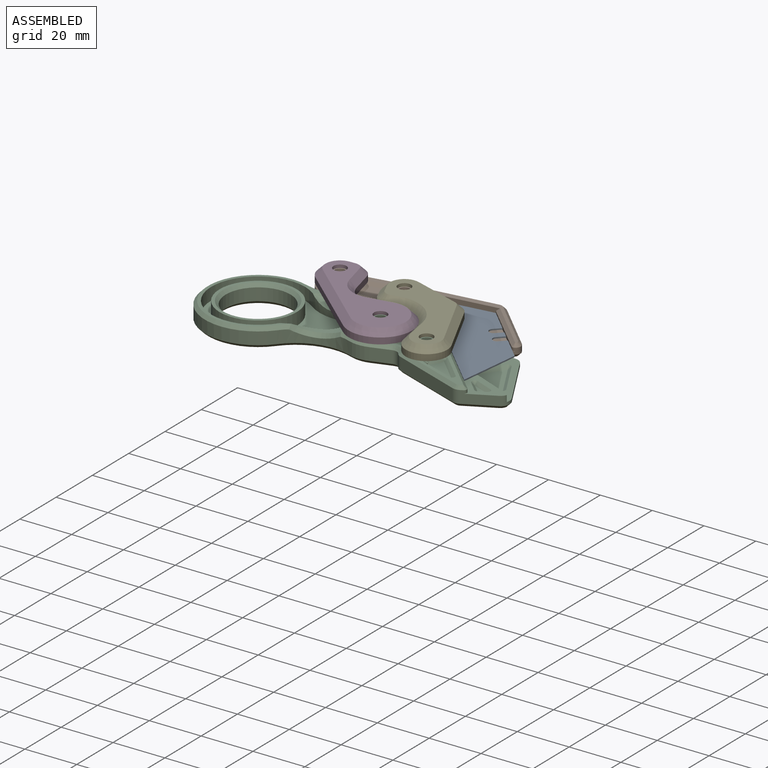
[diagram: assembled view]
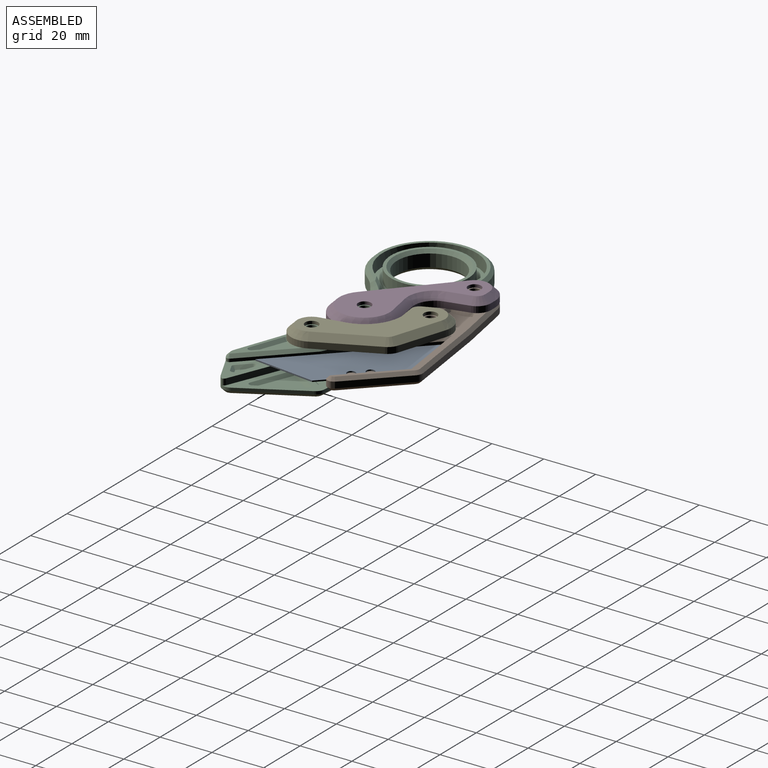
[diagram: assembled view, second angle]
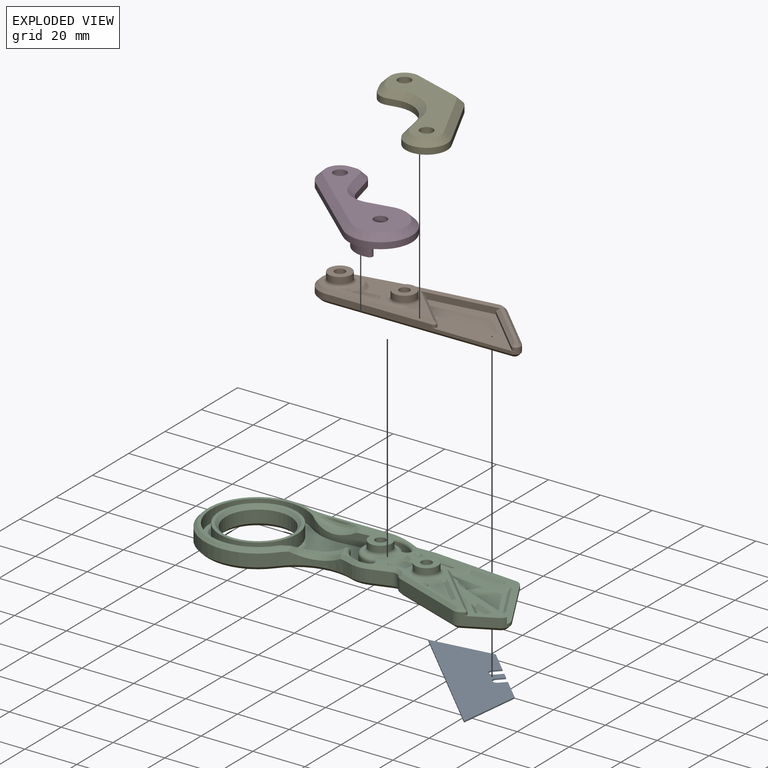
[diagram: exploded view]
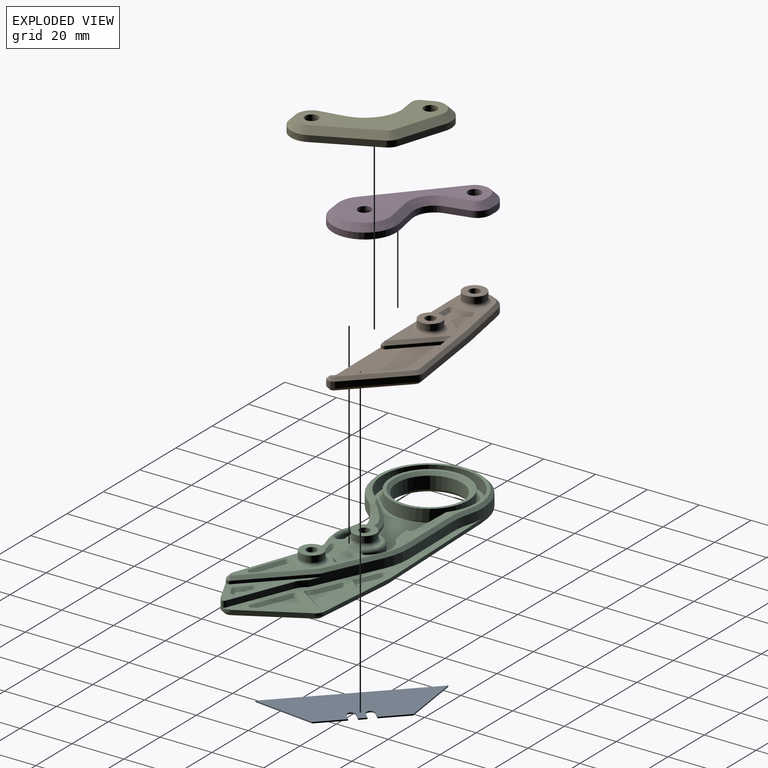
[diagram: exploded view, second angle]
ASSEMBLY  parts=5 mates=5
PART A: 14 faces, bbox 47.1x46.7x0.5 mm
  f0: plane 8.28x8.12mm, normal (0.7,0.71,0), area 5.8mm2, adj f1,f11,f12,f13
  f1: plane 23.8x3.27mm, normal (-0.14,0.99,0), area 12mm2, adj f0,f2,f12,f13
  f2: plane 44.25x43.43mm, normal (-0.7,-0.71,0), area 31mm2, adj f1,f3,f12,f13
  f3: plane 23.86x2.82mm, normal (0.99,-0.12,0), area 12mm2, adj f2,f4,f12,f13
  f4: plane 8.28x8.12mm, normal (0.7,0.71,0), area 5.8mm2, adj f3,f5,f12,f13
  f5: plane 2.28x2.24mm, normal (-0.71,0.7,0), area 1.6mm2, adj f4,f6,f12,f13
  f6: cylinder r=1.6mm len=2.74mm, axis (0,0,-1), area 2.5mm2, adj f5,f7,f12,f13
  f7: plane 2.28x2.24mm, normal (0.71,-0.7,0), area 1.6mm2, adj f6,f8,f12,f13
  f8: plane 2.14x2.1mm, normal (0.7,0.71,0), area 1.5mm2, adj f7,f9,f12,f13
  f9: plane 2.28x2.24mm, normal (-0.71,0.7,0), area 1.6mm2, adj f8,f10,f12,f13
  f10: cylinder r=1.6mm len=2.74mm, axis (0,0,-1), area 2.5mm2, adj f9,f11,f12,f13
  f11: plane 2.28x2.24mm, normal (0.71,-0.7,0), area 1.6mm2, adj f0,f10,f12,f13
  f12: plane 47.07x46.69mm, normal (0,0,1), area 870.2mm2, adj f0,f1,f2,f3,f4,f5,f6,f7
  f13: plane 47.07x46.69mm, normal (0,0,-1), area 870.2mm2, adj f0,f1,f2,f3,f4,f5,f6,f7
PART B: 63 faces, bbox 81.2x24x8.4 mm
  f0: plane 45.8x19.97mm, normal (0,0,1), area 512.8mm2, adj f3,f4,f11,f12,f13,f14,f16,f17
  f1: plane 20.23x3.71mm, normal (-0.18,0.98,0), area 49.4mm2, adj f2,f20,f22,f43
  f2: cylinder r=8mm len=15.87mm, axis (0,0,1), area 57.1mm2, adj f1,f3,f23,f44
  f3: plane 70.76x2.4mm, normal (0.01,-1,0), area 133.5mm2, adj f0,f2,f4,f16,f25,f45
  f4: cylinder r=2.35mm len=2.6mm, axis (0,0,1), area 7.3mm2, adj f0,f3,f17,f19,f27,f36
  f5: plane 2.4x0.96mm, normal (0.87,0.49,0), area 2.6mm2, adj f6,f19,f31,f38
  f6: plane 18.52x18.17mm, normal (0.7,0.71,0), area 62.3mm2, adj f5,f21,f30,f39
  f7: cylinder r=2mm len=8.4mm, axis (0,0,1), area 105.6mm2, adj f10,f51
  f8: plane 31.99x4.39mm, normal (-0.14,0.99,0), area 77.5mm2, adj f20,f21,f26,f41
  f9: cylinder r=2mm len=8.4mm, axis (0,0,1), area 105.6mm2, adj f10,f49
  f10: plane 78.77x21.63mm, normal (0,0,-1), area 1197.8mm2, adj f7,f9,f22,f23,f24,f25,f26,f27
  f11: plane 14.78x14.51mm, normal (0.7,0.71,0), area 24.9mm2, adj f0,f12,f16,f47
  f12: plane 27.81x3.82mm, normal (0.14,-0.99,0), area 61.9mm2, adj f0,f11,f13,f15,f32,f47
  f13: plane 19.33x18.97mm, normal (-0.7,-0.71,0), area 32.5mm2, adj f0,f12,f18,f32
  f14: plane 1.2x0.01mm, normal (-0.08,-1,0), area 0mm2, adj f0,f17,f18,f34
  f15: plane 78.77x21.63mm, normal (0,0,1), area 381.5mm2, adj f12,f32,f34,f36,f38,f39,f40,f41
  f16: cylinder r=1.2mm len=2.06mm, axis (0,0,1), area 3.4mm2, adj f0,f3,f11,f46
  f17: cylinder r=1.2mm len=1.2mm, axis (0,0,1), area 1.2mm2, adj f0,f4,f14,f35
  f18: cylinder r=1.2mm len=1.2mm, axis (0,0,1), area 1mm2, adj f0,f13,f14,f33
  f19: cylinder r=1.2mm len=2.4mm, axis (0,0,1), area 1.2mm2, adj f4,f5,f29,f37
  f20: cylinder r=3.6mm len=2.4mm, axis (0,0,1), area 0.4mm2, adj f1,f8,f24,f42
  f21: cylinder r=3.6mm len=3.01mm, axis (0,0,1), area 7.9mm2, adj f6,f8,f28,f40
  f22: plane 20.45x4.89mm, normal (-0.13,0.7,-0.71), area 34.9mm2, adj f1,f10,f23,f24
  f23: cone r=8mm half-angle=45deg, axis (0,0,1), area 37.3mm2, adj f2,f10,f22,f25
  f24: cone r=2.4mm half-angle=45deg, axis (0,0,1), area 0.2mm2, adj f10,f20,f22,f26
  f25: plane 70.77x2.01mm, normal (0.01,-0.71,-0.71), area 120.1mm2, adj f3,f10,f23,f27
  f26: plane 32.15x5.58mm, normal (-0.1,0.7,-0.71), area 54.8mm2, adj f8,f10,f24,f28
  f27: cone r=2.35mm half-angle=45deg, axis (0,0,1), area 4.9mm2, adj f4,f10,f25,f29
  f28: cone r=2.4mm half-angle=45deg, axis (0,0,1), area 4.6mm2, adj f10,f21,f26,f30
  f29: cone r=1.2mm half-angle=45deg, axis (0,0,1), area 0.4mm2, adj f19,f27,f31
  f30: plane 19.36x18.91mm, normal (0.5,0.5,-0.71), area 43.9mm2, adj f6,f10,f28,f31
  f31: plane 1.55x1.5mm, normal (0.62,0.35,-0.71), area 1.7mm2, adj f5,f10,f29,f30
  f32: plane 20.17x19.17mm, normal (-0.5,-0.5,0.71), area 45.2mm2, adj f12,f13,f15,f33
  f33: cone r=1.2mm half-angle=45deg, axis (0,0,-1), area 0.7mm2, adj f18,f32,f34
  f34: plane 1.2x1.2mm, normal (-0.06,-0.7,0.71), area 0mm2, adj f14,f15,f33,f35
  f35: cone r=1.2mm half-angle=45deg, axis (0,0,-1), area 0.9mm2, adj f17,f34,f36
  f36: cone r=1.15mm half-angle=45deg, axis (0,0,-1), area 2.7mm2, adj f4,f15,f35,f37
  f37: cone r=1.2mm half-angle=45deg, axis (0,0,-1), area 0.4mm2, adj f19,f36,f38
  f38: plane 1.55x1.5mm, normal (0.62,0.35,0.71), area 1.7mm2, adj f5,f15,f37,f39
  f39: plane 19.36x18.91mm, normal (0.5,0.5,0.71), area 43.9mm2, adj f6,f15,f38,f40
  f40: cone r=2.4mm half-angle=45deg, axis (0,0,-1), area 4.6mm2, adj f15,f21,f39,f41
  f41: plane 32.15x5.58mm, normal (-0.1,0.7,0.71), area 54.8mm2, adj f8,f15,f40,f42
  f42: cone r=2.4mm half-angle=45deg, axis (0,0,-1), area 0.2mm2, adj f15,f20,f41,f43
  f43: plane 20.45x4.89mm, normal (-0.13,0.7,0.71), area 34.9mm2, adj f1,f15,f42,f44
  f44: cone r=6.8mm half-angle=45deg, axis (0,0,-1), area 37.3mm2, adj f2,f15,f43,f45
  f45: plane 40.51x1.66mm, normal (0.01,-0.71,0.71), area 68.7mm2, adj f3,f15,f44,f46
  f46: cone r=1.2mm half-angle=45deg, axis (0,0,-1), area 2.4mm2, adj f16,f45,f47
  f47: plane 16.29x15.36mm, normal (0.5,0.5,0.71), area 35.9mm2, adj f11,f12,f15,f46
  f48: cylinder r=4.4mm len=8.8mm, axis (0,0,-1), area 66.4mm2, adj f49,f53
  f49: plane 8.8x8.8mm, normal (0,0,1), area 48.3mm2, adj f9,f48
  f50: cylinder r=4.4mm len=8.8mm, axis (0,0,-1), area 66.4mm2, adj f51,f52
  f51: plane 8.8x8.8mm, normal (0,0,1), area 48.3mm2, adj f7,f50
  f52: torus R=5.6mm, axis (0,0,1), area 57.3mm2, adj f15,f50
  f53: torus R=5.6mm, axis (0,0,1), area 57.3mm2, adj f15,f48
  f54: plane 10.05x9.65mm, normal (0,0,1), area 61.6mm2, adj f56,f57,f60,f61
  f55: cone r=1.2mm half-angle=45deg, axis (0,0,1), area 2mm2, adj f15,f56,f57
  f56: cone r=8mm half-angle=45deg, axis (0,0,-1), area 12.9mm2, adj f15,f54,f55,f58
  f57: plane 7.45x1.29mm, normal (-0.01,0.71,0.71), area 12.6mm2, adj f15,f54,f55,f59
  f58: cone r=1.2mm half-angle=45deg, axis (0,0,1), area 2mm2, adj f15,f56,f60
  f59: cone r=1.2mm half-angle=45deg, axis (0,0,1), area 2mm2, adj f15,f57,f61
  f60: plane 10.26x3.02mm, normal (0.13,-0.7,0.71), area 17.3mm2, adj f15,f54,f58,f62
  f61: cone r=8mm half-angle=45deg, axis (0,0,-1), area 16.3mm2, adj f15,f54,f59,f62
  f62: cone r=1.2mm half-angle=45deg, axis (0,0,1), area 2.5mm2, adj f15,f60,f61
PART C: 149 faces, bbox 124.3x44.3x12.4 mm
  f0: plane 6.25x5.68mm, normal (0,0,1), area 5mm2, adj f1,f146,f147,f148
  f1: cylinder r=16.38mm len=17.7mm, axis (-0.31,0.95,0), area 44.8mm2, adj f0,f2,f143,f144,f145,f146,f148
  f2: bspline ~11.16x9.84mm, area 26.8mm2, adj f1,f3,f142,f143,f146
  f3: cylinder r=18.1mm len=36.2mm, axis (0,0,1), area 420.4mm2, adj f2,f4,f141,f142,f143
  f4: plane 69.51x36.2mm, normal (0,0,1), area 655.9mm2, adj f3,f5,f132,f133,f134,f135,f136,f139
  f5: cylinder r=1.4mm len=3.6mm, axis (0,0,1), area 15.8mm2, adj f4,f6,f132,f139
  f6: torus R=2.6mm, axis (0,0,1), area 10.9mm2, adj f5,f7,f130,f131
  f7: plane 51.86x30.57mm, normal (0,0,1), area 209mm2, adj f6,f8,f99,f100,f101,f102,f103,f104
  f8: plane 21.63x10.78mm, normal (0.3,0.64,0.71), area 39.3mm2, adj f7,f9,f98,f99,f143
  f9: plane 25.16x11.64mm, normal (0.42,0.91,0), area 94.5mm2, adj f8,f10,f87,f88,f96,f97
  f10: plane 102.87x31.02mm, normal (0,0,1), area 488.6mm2, adj f9,f11,f47,f48,f49,f50,f51,f52
  f11: plane 53.85x1.76mm, normal (-0.03,1,0), area 64.6mm2, adj f10,f12,f47,f58
  f12: plane 53.85x2.96mm, normal (-0.02,0.71,-0.71), area 91.4mm2, adj f11,f13,f45,f46
  f13: plane 120.3x40.35mm, normal (0,0,-1), area 2720.6mm2, adj f12,f14,f17,f20,f31,f32,f33,f34
  f14: cylinder r=2mm len=10.8mm, axis (0,0,1), area 135.7mm2, adj f13,f15
  f15: plane 8.8x8.8mm, normal (0,0,1), area 48.3mm2, adj f14,f16
  f16: cylinder r=4.4mm len=8.8mm, axis (0,0,-1), area 66.4mm2, adj f15,f108
  f17: cylinder r=2mm len=10.8mm, axis (0,0,1), area 135.7mm2, adj f13,f18
  f18: plane 8.8x8.8mm, normal (0,0,1), area 48.3mm2, adj f17,f19
  f19: cylinder r=4.4mm len=8.8mm, axis (0,0,-1), area 66.4mm2, adj f18,f109
  f20: cone r=21.7mm half-angle=45deg, axis (0,0,-1), area 44.9mm2, adj f13,f21,f31,f46
  f21: cylinder r=20.5mm len=23.16mm, axis (0,0,1), area 93mm2, adj f20,f22,f58,f144,f145,f148
  f22: cylinder r=12.2mm len=7.95mm, axis (0,0,1), area 38.9mm2, adj f21,f23,f31,f106
  f23: plane 7.3x4.8mm, normal (0.31,-0.95,0), area 36.8mm2, adj f22,f24,f32,f105
  f24: cylinder r=2.67mm len=4.8mm, axis (0,0,1), area 16.9mm2, adj f23,f25,f33,f104
  f25: cylinder r=3.6mm len=4.8mm, axis (0,0,1), area 11.4mm2, adj f24,f26,f34,f103
  f26: plane 26.91x9.75mm, normal (-0.34,-0.94,0), area 137.4mm2, adj f25,f27,f35,f102
  f27: cylinder r=3.6mm len=4.8mm, axis (0,0,1), area 14.1mm2, adj f26,f28,f36,f101
  f28: plane 11.04x5.58mm, normal (0.45,-0.89,0), area 45.7mm2, adj f27,f29,f37,f50,f88,f100
  f29: cylinder r=1.2mm len=1.93mm, axis (0,0,1), area 2.7mm2, adj f28,f30,f88,f96
  f30: cone r=1.2mm half-angle=45deg, axis (0,0,-1), area 2.7mm2, adj f29,f99,f100
  f31: cone r=12.2mm half-angle=45deg, axis (0,0,1), area 13.1mm2, adj f13,f20,f22,f32
  f32: plane 7.67x3.5mm, normal (0.22,-0.67,-0.71), area 13mm2, adj f13,f23,f31,f33
  f33: cone r=3.87mm half-angle=45deg, axis (0,0,-1), area 7.3mm2, adj f13,f24,f32,f34
  f34: cone r=2.4mm half-angle=45deg, axis (0,0,1), area 3.4mm2, adj f13,f25,f33,f35
  f35: plane 27.32x10.88mm, normal (-0.24,-0.66,-0.71), area 48.6mm2, adj f13,f26,f34,f36
  f36: cone r=2.4mm half-angle=45deg, axis (0,0,1), area 4.2mm2, adj f13,f27,f35,f37
  f37: plane 11.58x6.65mm, normal (0.32,-0.63,-0.71), area 21mm2, adj f13,f28,f36,f38
  f38: cone r=2.4mm half-angle=45deg, axis (0,0,1), area 8.2mm2, adj f13,f37,f39,f50
  f39: plane 23.77x14.1mm, normal (0.62,0.35,-0.71), area 45.1mm2, adj f13,f38,f40,f49
  f40: cone r=2.4mm half-angle=45deg, axis (0,0,1), area 5mm2, adj f13,f39,f45,f48
  f41: cone r=13.7mm half-angle=45deg, axis (0,0,-1), area 139.7mm2, adj f13,f42
  f42: cylinder r=12.5mm len=25mm, axis (0,0,1), area 377mm2, adj f41,f43
  f43: cone r=12.5mm half-angle=45deg, axis (0,0,1), area 139.7mm2, adj f42,f44
  f44: plane 29.8x29.8mm, normal (0,0,1), area 107.8mm2, adj f43,f140
  f45: plane 32.7x3.95mm, normal (0.06,0.7,-0.71), area 55.6mm2, adj f12,f13,f40,f47
  f46: cone r=20.5mm half-angle=45deg, axis (0,0,1), area 135.5mm2, adj f12,f13,f20,f58
  f47: plane 32.67x2.76mm, normal (0.08,1,0), area 39.3mm2, adj f10,f11,f45,f48
  f48: cylinder r=3.6mm len=2.83mm, axis (0,0,1), area 4.2mm2, adj f10,f40,f47,f49
  f49: plane 23.18x13.06mm, normal (0.87,0.49,0), area 31.9mm2, adj f10,f39,f48,f50
  f50: cylinder r=3.6mm len=4.98mm, axis (0,0,1), area 12.8mm2, adj f10,f28,f38,f49,f51,f88
  f51: cylinder r=1.2mm len=2.4mm, axis (0,0,1), area 3.1mm2, adj f10,f50,f52,f88
  f52: plane 23.81x9.6mm, normal (0.37,0.93,0), area 61.6mm2, adj f10,f51,f87,f88
  f53: plane 24.04x3.6mm, normal (-0.01,1,0), area 86.6mm2, adj f10,f54,f57,f97
  f54: plane 24.06x1.47mm, normal (-0.01,0.71,0.71), area 40.8mm2, adj f53,f55,f98,f143
  f55: cone r=26.2mm half-angle=45deg, axis (0,0,1), area 13.5mm2, adj f54,f56,f57,f143
  f56: cone r=19.3mm half-angle=45deg, axis (0,0,-1), area 146.7mm2, adj f55,f58,f143,f144
  f57: cylinder r=25mm len=7.64mm, axis (0,0,1), area 27.9mm2, adj f10,f53,f55,f58
  f58: cylinder r=20.5mm len=41mm, axis (0,0,1), area 419.3mm2, adj f10,f11,f21,f46,f56,f57
  f59: plane 16.08x8.09mm, normal (0.26,0.66,0.71), area 26.5mm2, adj f10,f60,f61,f65
  f60: plane 15.14x14.5mm, normal (0,0,1), area 84.8mm2, adj f59,f62,f64
  f61: cone r=1.2mm half-angle=45deg, axis (0,0,1), area 1.7mm2, adj f10,f59,f62
  f62: plane 16.04x9.88mm, normal (-0.62,-0.35,0.71), area 29.5mm2, adj f10,f60,f61,f63
  f63: cone r=1.2mm half-angle=45deg, axis (0,0,1), area 2.3mm2, adj f10,f62,f64
  f64: plane 9.94x6.98mm, normal (0.59,-0.38,0.71), area 18.7mm2, adj f10,f60,f63,f65
  f65: cone r=1.2mm half-angle=45deg, axis (0,0,1), area 1.8mm2, adj f10,f59,f64
  f66: cone r=3.6mm half-angle=45deg, axis (0,0,-1), area 2.8mm2, adj f10,f67,f68,f76
  f67: plane 17.15x10.59mm, normal (0,0,1), area 100.4mm2, adj f66,f68,f70,f72,f74,f76
  f68: cone r=5.6mm half-angle=45deg, axis (0,0,1), area 0.3mm2, adj f10,f66,f67,f69
  f69: cone r=1.2mm half-angle=45deg, axis (0,0,1), area 1.4mm2, adj f10,f68,f70
  f70: plane 11.07x8.04mm, normal (-0.59,0.38,0.71), area 19.1mm2, adj f10,f67,f69,f71
  f71: cone r=1.2mm half-angle=45deg, axis (0,0,1), area 1.4mm2, adj f10,f70,f72
  f72: plane 14.18x3.18mm, normal (-0.06,-0.7,0.71), area 22.5mm2, adj f10,f67,f71,f73
  f73: cone r=1.2mm half-angle=45deg, axis (0,0,1), area 1.5mm2, adj f10,f72,f74
  f74: plane 6.94x6.26mm, normal (0.55,-0.45,0.71), area 10.5mm2, adj f10,f67,f73,f75
  f75: cone r=1.2mm half-angle=45deg, axis (0,0,1), area 2.7mm2, adj f10,f74,f76
  f76: plane 9.98x5.47mm, normal (0.3,0.64,0.71), area 17.7mm2, adj f10,f66,f67,f75
  f77: plane 11.78x3.05mm, normal (-0.06,-0.7,0.71), area 18.3mm2, adj f10,f78,f79,f80,f86
  f78: cone r=1.2mm half-angle=45deg, axis (0,0,1), area 0.1mm2, adj f77,f85
  f79: plane 11.44x4.1mm, normal (0,0,1), area 19.9mm2, adj f77,f81,f83,f85
  f80: cone r=1.2mm half-angle=45deg, axis (0,0,1), area 0.1mm2, adj f10,f77,f81
  f81: plane 2.16x2.14mm, normal (0.02,-0.71,0.71), area 1.2mm2, adj f10,f79,f80,f82
  f82: cone r=1.2mm half-angle=45deg, axis (0,0,1), area 3.3mm2, adj f10,f81,f83
  f83: plane 9.31x5.17mm, normal (0.3,0.64,0.71), area 16.5mm2, adj f10,f79,f82,f84
  f84: cone r=1.2mm half-angle=45deg, axis (0,0,1), area 1.3mm2, adj f10,f83,f85
  f85: plane 5.05x4.65mm, normal (-0.55,0.45,0.71), area 7mm2, adj f10,f78,f79,f84,f86
  f86: cone r=1.2mm half-angle=45deg, axis (0,0,1), area 1.1mm2, adj f10,f77,f85
  f87: cylinder r=8mm len=3.67mm, axis (0,0,-1), area 11.6mm2, adj f9,f10,f52,f88
  f88: plane 32.26x22.29mm, normal (0,0,1), area 141.5mm2, adj f9,f28,f29,f50,f51,f52,f87,f89
  f89: cone r=1.2mm half-angle=45deg, axis (0,0,1), area 1.3mm2, adj f88,f90,f95
  f90: plane 3.18x2.4mm, normal (-0.32,0.63,0.71), area 5mm2, adj f88,f89,f91,f92
  f91: plane 6.78x4.07mm, normal (0,0,1), area 8.1mm2, adj f90,f93,f95
  f92: cone r=1.2mm half-angle=45deg, axis (0,0,1), area 2.3mm2, adj f88,f90,f93
  f93: plane 7.93x4.55mm, normal (-0.26,-0.66,0.71), area 12.4mm2, adj f88,f91,f92,f94
  f94: cone r=1.2mm half-angle=45deg, axis (0,0,1), area 3.2mm2, adj f88,f93,f95
  f95: plane 4.99x4.92mm, normal (0.5,0.5,0.71), area 9.9mm2, adj f88,f89,f91,f94
  f96: plane 20.75x20.37mm, normal (0.7,0.71,0), area 34.9mm2, adj f9,f29,f88,f99
  f97: cylinder r=25mm len=10.79mm, axis (0,0,1), area 40mm2, adj f9,f10,f53,f98
  f98: cone r=23.8mm half-angle=45deg, axis (0,0,-1), area 18.4mm2, adj f8,f54,f97,f143
  f99: plane 22.78x22.55mm, normal (0.5,0.5,0.71), area 49.2mm2, adj f7,f8,f30,f96
  f100: plane 1.52x1.43mm, normal (0.32,-0.63,0.71), area 1.7mm2, adj f7,f28,f30,f101
  f101: cone r=2.4mm half-angle=45deg, axis (0,0,-1), area 4.2mm2, adj f7,f27,f100,f102
  f102: plane 27.32x10.88mm, normal (-0.24,-0.66,0.71), area 48.6mm2, adj f7,f26,f101,f103
  f103: cone r=2.4mm half-angle=45deg, axis (0,0,-1), area 3.4mm2, adj f7,f25,f102,f104
  f104: cone r=2.67mm half-angle=45deg, axis (0,0,1), area 7.3mm2, adj f7,f24,f103,f105
  f105: plane 7.67x3.5mm, normal (0.22,-0.67,0.71), area 13mm2, adj f7,f23,f104,f106
  f106: cone r=11mm half-angle=45deg, axis (0,0,-1), area 13.1mm2, adj f7,f22,f105,f147,f148
  f107: torus R=2.6mm, axis (0,0,1), area 10.9mm2, adj f7,f130,f133,f147
  f108: torus R=5.6mm, axis (0,0,1), area 57.3mm2, adj f7,f16
  f109: torus R=5.6mm, axis (0,0,1), area 57.3mm2, adj f7,f19
  f110: plane 1.79x1.6mm, normal (-0.22,0.67,0.71), area 2.5mm2, adj f7,f111,f112,f122
  f111: plane 10.47x8.79mm, normal (0,0,1), area 41.3mm2, adj f110,f112,f114,f116,f118,f121
  f112: cone r=5.07mm half-angle=45deg, axis (0,0,-1), area 5.6mm2, adj f7,f110,f111,f113
  f113: cone r=1.2mm half-angle=45deg, axis (0,0,1), area 1.9mm2, adj f7,f112,f114
  f114: cone r=6.8mm half-angle=45deg, axis (0,0,-1), area 13.4mm2, adj f7,f111,f113,f115
  f115: cone r=1.2mm half-angle=45deg, axis (0,0,1), area 1.5mm2, adj f7,f114,f116
  f116: plane 7.07x4.49mm, normal (-0.3,-0.64,0.71), area 11mm2, adj f7,f111,f115,f117
  f117: cone r=1.2mm half-angle=45deg, axis (0,0,1), area 1.2mm2, adj f7,f116,f118
  f118: cone r=3.8mm half-angle=45deg, axis (0,0,-1), area 3.5mm2, adj f7,f111,f117,f119,f120
  f119: cone r=1.2mm half-angle=45deg, axis (0,0,1), area 0.1mm2, adj f118,f121
  f120: cone r=1.2mm half-angle=45deg, axis (0,0,1), area 0.4mm2, adj f7,f118,f121
  f121: cone r=10.59mm half-angle=45deg, axis (0,0,-1), area 14.1mm2, adj f7,f111,f119,f120,f122
  f122: cone r=1.2mm half-angle=45deg, axis (0,0,1), area 3.3mm2, adj f7,f110,f121
  f123: cone r=1.2mm half-angle=45deg, axis (0,0,1), area 1.5mm2, adj f7,f124,f129
  f124: cone r=6.8mm half-angle=45deg, axis (0,0,-1), area 9.2mm2, adj f7,f123,f125,f126
  f125: plane 12.73x9.49mm, normal (0,0,1), area 36mm2, adj f124,f127,f129
  f126: cone r=1.2mm half-angle=45deg, axis (0,0,1), area 3.9mm2, adj f7,f124,f127
  f127: plane 14.71x7.31mm, normal (0.24,0.66,0.71), area 23mm2, adj f7,f125,f126,f128
  f128: cone r=1.2mm half-angle=45deg, axis (0,0,1), area 2.8mm2, adj f7,f127,f129
  f129: plane 10.98x10.82mm, normal (-0.5,-0.5,0.71), area 23mm2, adj f7,f123,f125,f128
  f130: torus R=5.8mm, axis (0,0,1), area 52.3mm2, adj f6,f7,f107,f132
  f131: torus R=11mm, axis (0,0,1), area 32.8mm2, adj f6,f7,f136,f139,f143
  f132: cylinder r=7mm len=14mm, axis (0,0,1), area 106.6mm2, adj f4,f5,f130,f133
  f133: cylinder r=1.4mm len=3.6mm, axis (0,0,1), area 15.8mm2, adj f4,f107,f132,f134
  f134: cylinder r=9.8mm len=11.21mm, axis (0,0,1), area 51.1mm2, adj f4,f133,f135,f147
  f135: plane 8.12x3.92mm, normal (-0.31,0.95,0), area 18mm2, adj f4,f134,f142,f146,f147
  f136: plane 13.71x5.19mm, normal (0.11,-0.99,0), area 55.4mm2, adj f4,f131,f137,f139,f141,f143
  f137: cylinder r=16.38mm len=17.36mm, axis (-0.31,0.95,0), area 34.7mm2, adj f136,f138,f141,f143
  f138: bspline ~22.17x5.69mm, area 51.9mm2, adj f137,f141,f143
  f139: cylinder r=9.8mm len=14.23mm, axis (0,0,1), area 57.6mm2, adj f4,f5,f131,f136
  f140: cylinder r=14.9mm len=29.8mm, axis (0,0,1), area 449.4mm2, adj f4,f44
  f141: cylinder r=18.1mm len=12.77mm, axis (0,0,1), area 42.8mm2, adj f3,f4,f136,f137,f138,f143
  f142: cylinder r=18.1mm len=10.2mm, axis (0,0,1), area 27.8mm2, adj f2,f3,f4,f135
  f143: plane 68.23x39.44mm, normal (0,0,1), area 190.3mm2, adj f1,f2,f3,f8,f54,f55,f56,f98
  f144: cone r=20.5mm half-angle=45deg, axis (0,0,1), area 7.5mm2, adj f1,f21,f56,f143,f145
  f145: bspline ~18.16x6.78mm, area 34mm2, adj f1,f21,f144,f148
  f146: cone r=17.74mm half-angle=45deg, axis (-0.31,0.95,0), area 16.7mm2, adj f0,f1,f2,f135,f147
  f147: torus R=11mm, axis (0,0,1), area 27mm2, adj f0,f106,f107,f134,f135,f146
  f148: cone r=20.5mm half-angle=45deg, axis (0,0,1), area 7.8mm2, adj f0,f1,f21,f106,f145
PART D: 60 faces, bbox 50.6x41.8x9.2 mm
  f0: plane 50.63x41.37mm, normal (0,0,-1), area 497.2mm2, adj f3,f4,f5,f6,f7,f8,f9,f10
  f1: cylinder r=4.6mm len=9.2mm, axis (0,0,-1), area 69.4mm2, adj f34,f35
  f2: cylinder r=4.6mm len=9.2mm, axis (0,0,-1), area 69.4mm2, adj f32,f36
  f3: plane 9.01x2.4mm, normal (-0.19,0.98,0), area 22mm2, adj f0,f4,f10,f17
  f4: cylinder r=8mm len=9.26mm, axis (0,0,-1), area 29.1mm2, adj f0,f3,f5,f19
  f5: plane 8.9x2.4mm, normal (0.97,0.24,0), area 22mm2, adj f0,f4,f6,f21
  f6: cylinder r=12.2mm len=2.4mm, axis (0,0,-1), area 0.1mm2, adj f0,f5,f12,f20
  f7: plane 2.42x2.4mm, normal (-0.01,1,0), area 5.8mm2, adj f0,f8,f12,f16
  f8: cylinder r=8mm len=14.01mm, axis (0,0,-1), area 46.3mm2, adj f0,f7,f9,f14
  f9: plane 27.66x24.3mm, normal (-0.66,-0.75,0), area 88.4mm2, adj f0,f8,f10,f13
  f10: cylinder r=12.2mm len=24.4mm, axis (0,0,-1), area 118.6mm2, adj f0,f3,f9,f15
  f11: plane 45.83x36.57mm, normal (0,0,1), area 541.4mm2, adj f13,f14,f15,f16,f17,f18,f19,f20
  f12: cylinder r=5.4mm len=5.29mm, axis (0,0,-1), area 17.2mm2, adj f0,f6,f7,f18
  f13: plane 29.24x26.11mm, normal (-0.47,-0.53,0.71), area 125mm2, adj f9,f11,f14,f15
  f14: cone r=5.6mm half-angle=45deg, axis (0,0,-1), area 55.6mm2, adj f8,f11,f13,f16
  f15: cone r=9.8mm half-angle=45deg, axis (0,0,-1), area 151.3mm2, adj f10,f11,f13,f17
  f16: plane 2.44x2.43mm, normal (-0.01,0.71,0.71), area 8.2mm2, adj f7,f11,f14,f18
  f17: plane 9.46x4.08mm, normal (-0.13,0.69,0.71), area 31.1mm2, adj f3,f11,f15,f19
  f18: cone r=3mm half-angle=45deg, axis (0,0,-1), area 19mm2, adj f11,f12,f16,f20
  f19: cone r=8mm half-angle=45deg, axis (0,0,1), area 47.3mm2, adj f4,f11,f17,f21
  f20: cone r=9.8mm half-angle=45deg, axis (0,0,-1), area 0.2mm2, adj f6,f11,f18,f21
  f21: plane 9.48x4.57mm, normal (0.69,0.17,0.71), area 31.1mm2, adj f5,f11,f19,f20
  f22: cylinder r=7.2mm len=8.59mm, axis (0,0,1), area 41.5mm2, adj f23,f25,f26,f30
  f23: cylinder r=1.2mm len=3.2mm, axis (0,0,1), area 12.1mm2, adj f22,f24,f26,f28
  f24: cylinder r=9.6mm len=11.46mm, axis (0,0,1), area 55.3mm2, adj f23,f25,f26,f27
  f25: cylinder r=1.2mm len=3.2mm, axis (0,0,1), area 12.1mm2, adj f22,f24,f26,f29
  f26: plane 12.42x11.09mm, normal (0,0,-1), area 40.8mm2, adj f22,f23,f24,f25
  f27: torus R=10.8mm, axis (0,0,1), area 34mm2, adj f0,f24,f28,f29
  f28: torus R=2.4mm, axis (0,0,1), area 9.7mm2, adj f0,f23,f27,f30
  f29: torus R=2.4mm, axis (0,0,1), area 9.7mm2, adj f0,f25,f27,f30
  f30: torus R=6mm, axis (0,0,1), area 22.9mm2, adj f0,f22,f28,f29
  f31: cylinder r=2.5mm len=5mm, axis (0,0,1), area 18.8mm2, adj f11,f32
  f32: plane 9.2x9.2mm, normal (0,0,-1), area 46.8mm2, adj f2,f31
  f33: cylinder r=2.5mm len=5mm, axis (0,0,1), area 18.8mm2, adj f11,f34
  f34: plane 9.2x9.2mm, normal (0,0,-1), area 46.8mm2, adj f1,f33
  f35: cone r=5.8mm half-angle=45deg, axis (0,0,-1), area 55.4mm2, adj f0,f1
  f36: cone r=5.8mm half-angle=45deg, axis (0,0,-1), area 55.4mm2, adj f0,f2
  f37: plane 14.74x6.58mm, normal (0,0,-1), area 32.1mm2, adj f47,f50,f51,f53,f54,f57,f58
  f38: plane 5.1x5mm, normal (0,0,-1), area 11.8mm2, adj f40,f41,f44,f45
  f39: cone r=1.2mm half-angle=45deg, axis (0,0,-1), area 2.1mm2, adj f0,f40,f41
  f40: cone r=8.2mm half-angle=45deg, axis (0,0,1), area 6.2mm2, adj f0,f38,f39,f42
  f41: cone r=10.4mm half-angle=45deg, axis (0,0,1), area 6mm2, adj f0,f38,f39,f43
  f42: cone r=1.2mm half-angle=45deg, axis (0,0,-1), area 2.1mm2, adj f0,f40,f44
  f43: cone r=1.2mm half-angle=45deg, axis (0,0,-1), area 1.4mm2, adj f0,f41,f45
  f44: plane 4.2x3.89mm, normal (0.47,0.53,-0.71), area 7.7mm2, adj f0,f38,f42,f46
  f45: plane 2.6x2.49mm, normal (-0.53,0.47,-0.71), area 4.1mm2, adj f0,f38,f43,f46
  f46: cone r=1.2mm half-angle=45deg, axis (0,0,-1), area 1.6mm2, adj f0,f44,f45
  f47: cone r=8.2mm half-angle=45deg, axis (0,0,1), area 3.8mm2, adj f0,f37,f48,f49
  f48: cone r=1.2mm half-angle=45deg, axis (0,0,-1), area 1.1mm2, adj f0,f47,f50
  f49: cone r=1.2mm half-angle=45deg, axis (0,0,-1), area 2.8mm2, adj f0,f47,f51
  f50: cone r=4.8mm half-angle=45deg, axis (0,0,1), area 14.1mm2, adj f0,f37,f48,f52
  f51: plane 5.51x2.19mm, normal (0.13,-0.69,-0.71), area 9.1mm2, adj f0,f37,f49,f53
  f52: cone r=1.2mm half-angle=45deg, axis (0,0,-1), area 0.7mm2, adj f0,f50,f54
  f53: cone r=10.4mm half-angle=45deg, axis (0,0,1), area 13.1mm2, adj f0,f37,f51,f55
  f54: plane 1.29x1.2mm, normal (-0.44,0.55,-0.71), area 1mm2, adj f0,f37,f52,f56
  f55: cone r=1.2mm half-angle=45deg, axis (0,0,-1), area 1.4mm2, adj f0,f53,f57
  f56: cone r=1.2mm half-angle=45deg, axis (0,0,-1), area 1.4mm2, adj f0,f54,f58
  f57: plane 2.6x2.49mm, normal (0.53,-0.47,-0.71), area 4.1mm2, adj f0,f37,f55,f59
  f58: plane 6.22x5.67mm, normal (0.47,0.53,-0.71), area 12.3mm2, adj f0,f37,f56,f59
  f59: cone r=1.2mm half-angle=45deg, axis (0,0,-1), area 1.6mm2, adj f0,f57,f58
PART E: 49 faces, bbox 54.2x25.6x4.8 mm
  f0: plane 54.21x25.62mm, normal (0,0,-1), area 404.7mm2, adj f3,f4,f5,f6,f7,f8,f9,f10
  f1: cylinder r=4.6mm len=9.2mm, axis (0,0,-1), area 69.4mm2, adj f27,f28
  f2: cylinder r=4.6mm len=9.2mm, axis (0,0,-1), area 69.4mm2, adj f25,f29
  f3: plane 7.51x5.27mm, normal (0.57,0.82,0), area 22mm2, adj f0,f4,f10,f19
  f4: cylinder r=8mm len=15.52mm, axis (0,0,-1), area 65.4mm2, adj f0,f3,f5,f21
  f5: plane 23.33x8.45mm, normal (-0.34,-0.94,0), area 59.5mm2, adj f0,f4,f12,f23
  f6: plane 16.95x8.57mm, normal (0.45,-0.89,0), area 45.6mm2, adj f0,f7,f12,f20
  f7: cylinder r=8mm len=14.56mm, axis (0,0,-1), area 44mm2, adj f0,f6,f8,f18
  f8: plane 3.76x2.4mm, normal (0.37,0.93,0), area 9.7mm2, adj f0,f7,f13,f16
  f9: plane 2.68x2.4mm, normal (-0.82,0.57,0), area 7.8mm2, adj f0,f10,f13,f15
  f10: cylinder r=12.2mm len=17.03mm, axis (0,0,-1), area 46.2mm2, adj f0,f3,f9,f17
  f11: plane 49.41x20.82mm, normal (0,0,1), area 482.7mm2, adj f14,f15,f16,f17,f18,f19,f20,f21
  f12: cylinder r=5.4mm len=4.28mm, axis (0,0,-1), area 10.6mm2, adj f0,f5,f6,f22
  f13: cylinder r=5.4mm len=6.46mm, axis (0,0,-1), area 17.5mm2, adj f0,f8,f9,f14
  f14: cone r=3mm half-angle=45deg, axis (0,0,-1), area 19.2mm2, adj f11,f13,f15,f16
  f15: plane 4.04x3.83mm, normal (-0.58,0.4,0.71), area 11.1mm2, adj f9,f11,f14,f17
  f16: plane 4.66x3.74mm, normal (0.26,0.66,0.71), area 13.8mm2, adj f8,f11,f14,f18
  f17: cone r=12.2mm half-angle=45deg, axis (0,0,1), area 71.7mm2, adj f10,f11,f15,f19
  f18: cone r=5.6mm half-angle=45deg, axis (0,0,-1), area 52.9mm2, adj f7,f11,f16,f20
  f19: plane 8.89x7.23mm, normal (0.41,0.58,0.71), area 31.1mm2, adj f3,f11,f17,f21
  f20: plane 18.03x10.71mm, normal (0.32,-0.63,0.71), area 64.5mm2, adj f6,f11,f18,f22
  f21: cone r=5.6mm half-angle=45deg, axis (0,0,-1), area 78.6mm2, adj f4,f11,f19,f23
  f22: cone r=3mm half-angle=45deg, axis (0,0,-1), area 11.6mm2, adj f11,f12,f20,f23
  f23: plane 24.14x10.71mm, normal (-0.24,-0.66,0.71), area 84.2mm2, adj f5,f11,f21,f22
  f24: cylinder r=2.5mm len=5mm, axis (0,0,1), area 18.8mm2, adj f11,f25
  f25: plane 9.2x9.2mm, normal (0,0,-1), area 46.8mm2, adj f2,f24
  f26: cylinder r=2.5mm len=5mm, axis (0,0,1), area 18.8mm2, adj f11,f27
  f27: plane 9.2x9.2mm, normal (0,0,-1), area 46.8mm2, adj f1,f26
  f28: cone r=5.8mm half-angle=45deg, axis (0,0,-1), area 55.4mm2, adj f0,f1
  f29: cone r=5.8mm half-angle=45deg, axis (0,0,-1), area 55.4mm2, adj f0,f2
  f30: plane 10.61x8.83mm, normal (0,0,-1), area 49.9mm2, adj f42,f43,f46,f47
  f31: plane 13.62x10.73mm, normal (0,0,-1), area 73.5mm2, adj f33,f34,f37,f38,f39
  f32: cone r=1.2mm half-angle=45deg, axis (0,0,-1), area 2.1mm2, adj f0,f33,f34
  f33: cone r=8.2mm half-angle=45deg, axis (0,0,1), area 10.6mm2, adj f0,f31,f32,f35
  f34: plane 14.02x6.06mm, normal (0.24,0.66,-0.71), area 24.6mm2, adj f0,f31,f32,f36
  f35: cone r=1.2mm half-angle=45deg, axis (0,0,-1), area 2.1mm2, adj f0,f33,f37
  f36: cone r=1.2mm half-angle=45deg, axis (0,0,-1), area 2.1mm2, adj f0,f34,f38
  f37: plane 1.48x1.4mm, normal (-0.41,-0.58,-0.71), area 1.5mm2, adj f0,f31,f35,f39
  f38: plane 7.49x1.91mm, normal (-0.7,-0.07,-0.71), area 12.6mm2, adj f0,f31,f36,f40
  f39: cone r=14.6mm half-angle=45deg, axis (0,0,1), area 15.9mm2, adj f0,f31,f37,f40
  f40: cone r=1.2mm half-angle=45deg, axis (0,0,-1), area 1.5mm2, adj f0,f38,f39
  f41: cone r=1.2mm half-angle=45deg, axis (0,0,-1), area 2.1mm2, adj f0,f42,f43
  f42: cone r=8.2mm half-angle=45deg, axis (0,0,1), area 12.5mm2, adj f0,f30,f41,f44
  f43: plane 8.59x5.14mm, normal (-0.32,0.63,-0.71), area 15.3mm2, adj f0,f30,f41,f45
  f44: cone r=1.2mm half-angle=45deg, axis (0,0,-1), area 2.2mm2, adj f0,f42,f46
  f45: cone r=1.2mm half-angle=45deg, axis (0,0,-1), area 2mm2, adj f0,f43,f47
  f46: cone r=14.6mm half-angle=45deg, axis (0,0,1), area 9.2mm2, adj f0,f30,f44,f48
  f47: plane 8.1x1.97mm, normal (0.7,0.07,-0.71), area 13.6mm2, adj f0,f30,f45,f48
  f48: cone r=1.2mm half-angle=45deg, axis (0,0,-1), area 1.4mm2, adj f0,f46,f47
PLACE A rot(axis=(0,0,1),0deg) t=(0.14,0.42,2.4)mm
PLACE B rot(axis=(0,0,1),0deg) t=(0,0,2.4)mm
PLACE C at identity fixed
PLACE D rot(axis=(0,0,1),0deg) t=(0,0,4.8)mm
PLACE E rot(axis=(0,0,1),135.5deg) t=(111.4,-45.52,4.8)mm
MATE fastened A.f13 <-> B.f21  axis (0,0,-1) through (64.47,38.91,2.4)mm
MATE revolute B.f2 <-> D.f2  axis (0,0,1) through (13.04,26.48,4.8)mm
MATE revolute C.f19 <-> E.f2  axis (0,0,1) through (65,0,4.8)mm
MATE revolute B.f7 <-> E.f1  axis (0,0,1) through (37.72,26.77,4.8)mm
MATE revolute C.f14 <-> D.f1  axis (0,0,1) through (43.47,5.34,4.8)mm
